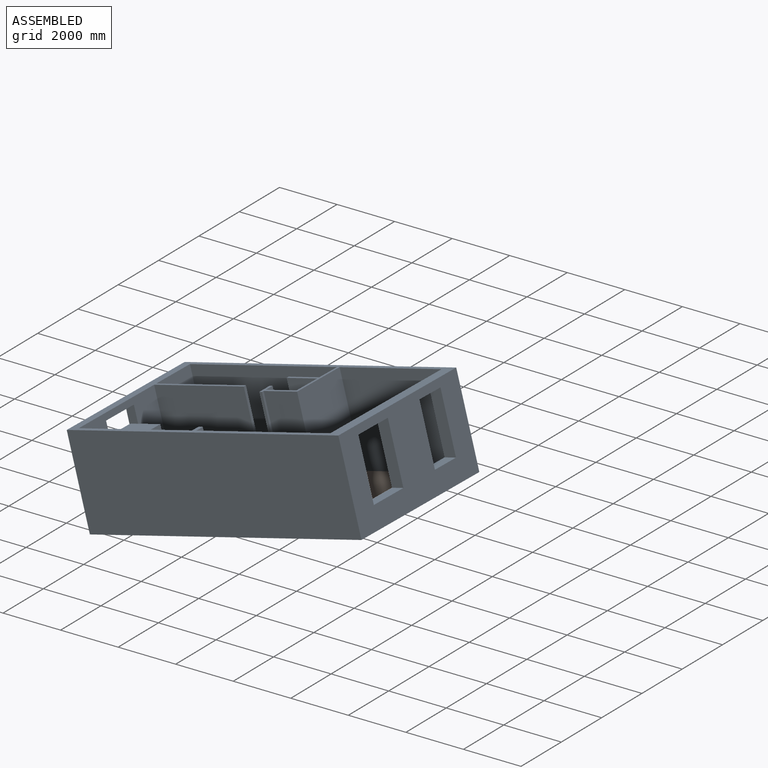
[diagram: assembled view]
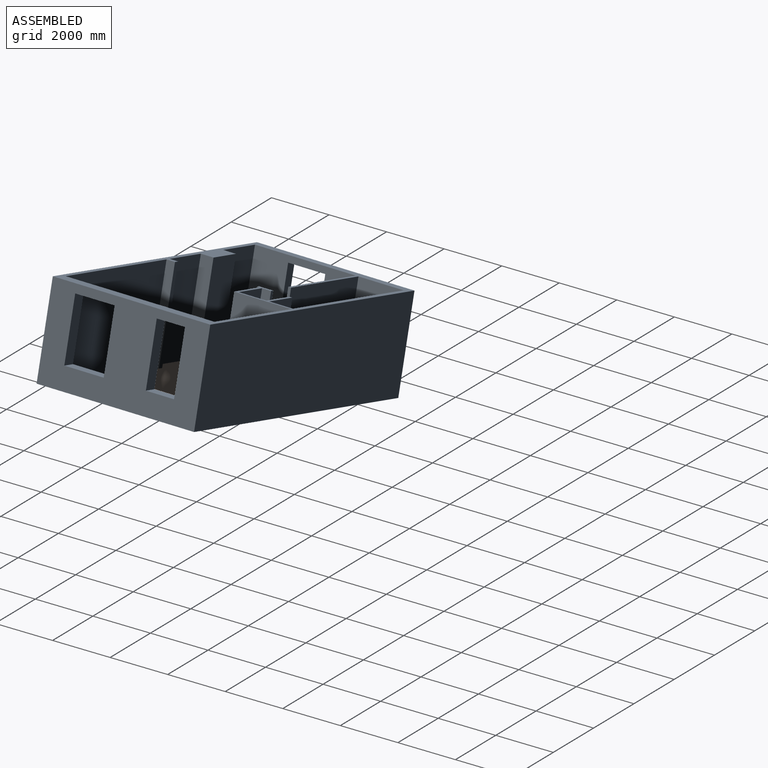
[diagram: assembled view, second angle]
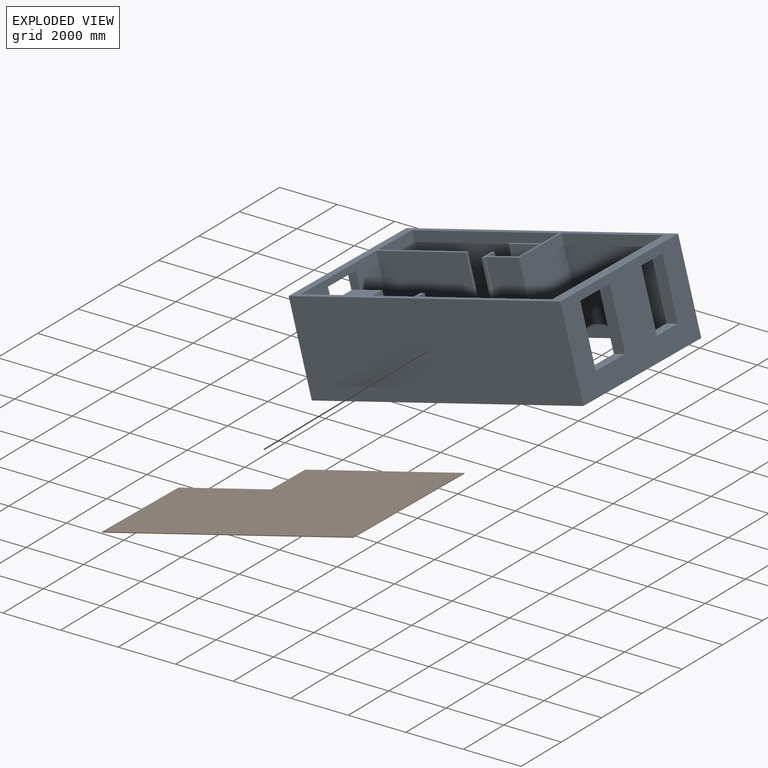
[diagram: exploded view]
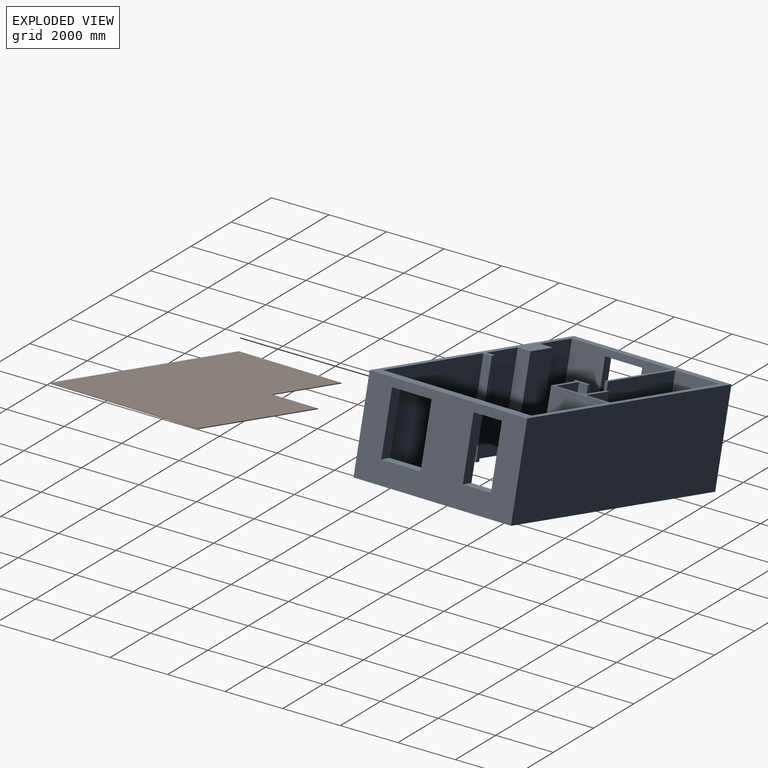
[diagram: exploded view, second angle]
ASSEMBLY  parts=2 mates=3
PART A: 53 faces, bbox 5600x10000x3170 mm
  f0: plane 10000x5600mm, normal (0,0,-1), area 6787200mm2, adj f1,f26,f27,f28,f29,f30,f31,f32
  f1: plane 5280x3170mm, normal (0,-1,0), area 10978700mm2, adj f0,f2,f4,f29,f31,f33,f37,f46
  f2: plane 3300x3145mm, normal (-1,0,0), area 10378500mm2, adj f1,f3,f33,f37
  f3: plane 3145x100mm, normal (0,-1,0), area 314500mm2, adj f2,f4,f33,f37
  f4: plane 3300x3145mm, normal (1,0,0), area 10378500mm2, adj f1,f3,f33,f37
  f5: plane 3145x840mm, normal (0,1,0), area 2641800mm2, adj f6,f29,f33,f36
  f6: plane 3145x1125mm, normal (1,0,0), area 3538125mm2, adj f5,f7,f33,f36
  f7: plane 3145x100mm, normal (0,1,0), area 314500mm2, adj f6,f8,f33,f36
  f8: plane 3145x1125mm, normal (-1,0,0), area 3538125mm2, adj f7,f9,f33,f36
  f9: plane 3145x980mm, normal (0,1,0), area 3082100mm2, adj f8,f10,f33,f36
  f10: plane 3145x1130mm, normal (1,0,0), area 3553850mm2, adj f9,f11,f33,f36
  f11: plane 3145x320mm, normal (0,-1,0), area 1006400mm2, adj f10,f12,f33,f36
  f12: plane 3145x110mm, normal (1,0,0), area 345950mm2, adj f11,f13,f33,f36
  f13: plane 3145x100mm, normal (0,1,0), area 314500mm2, adj f12,f14,f33,f36
  f14: plane 3145x10mm, normal (-1,0,0), area 31450mm2, adj f13,f15,f33,f36
  f15: plane 3145x400mm, normal (0,1,0), area 1258000mm2, adj f14,f16,f33,f36
  f16: plane 3145x100mm, normal (-1,0,0), area 314500mm2, adj f15,f17,f33,f36
  f17: plane 3145x80mm, normal (0,-1,0), area 251600mm2, adj f16,f18,f33,f36
  f18: plane 3145x1230mm, normal (-1,0,0), area 3868350mm2, adj f17,f19,f33,f36
  f19: plane 3145x2020mm, normal (0,-1,0), area 6352900mm2, adj f18,f29,f33,f36
  f20: plane 3145x300mm, normal (0,-1,0), area 943500mm2, adj f21,f31,f33,f35
  f21: plane 3145x160mm, normal (1,0,0), area 503200mm2, adj f20,f22,f33,f35
  f22: plane 3145x300mm, normal (0,1,0), area 943500mm2, adj f21,f31,f33,f35
  f23: plane 3145x450mm, normal (0,-1,0), area 1415250mm2, adj f24,f31,f33,f34
  f24: plane 3145x1100mm, normal (1,0,0), area 3459500mm2, adj f23,f25,f33,f34
  f25: plane 3145x450mm, normal (0,1,0), area 1415250mm2, adj f24,f31,f33,f34
  f26: plane 5600x3170mm, normal (0,1,0), area 12307600mm2, adj f0,f27,f32,f33,f46,f47,f48,f49
  f27: plane 10000x3170mm, normal (-1,0,0), area 31700000mm2, adj f0,f26,f28,f33
  f28: plane 5600x3170mm, normal (0,-1,0), area 12640000mm2, adj f0,f27,f32,f33,f38,f39,f40,f41
  f29: plane 9260x3170mm, normal (-1,0,0), area 29039700mm2, adj f0,f1,f5,f19,f30,f33,f36
  f30: plane 5280x3170mm, normal (0,1,0), area 11625600mm2, adj f0,f29,f31,f33,f38,f39,f40,f41
  f31: plane 9260x3170mm, normal (1,0,0), area 25391500mm2, adj f0,f1,f20,f22,f23,f25,f30,f33
  f32: plane 10000x3170mm, normal (1,0,0), area 31700000mm2, adj f0,f26,f28,f33
  f33: plane 10000x5600mm, normal (0,0,1), area 8458700mm2, adj f1,f2,f3,f4,f5,f6,f7,f8
  f34: plane 1100x450mm, normal (0,0,-1), area 495000mm2, adj f23,f24,f25,f31
  f35: plane 300x160mm, normal (0,0,-1), area 48000mm2, adj f20,f21,f22,f31
  f36: plane 2100x1340mm, normal (0,0,-1), area 478500mm2, adj f5,f6,f7,f8,f9,f10,f11,f12
  f37: plane 3300x100mm, normal (0,0,-1), area 330000mm2, adj f1,f2,f3,f4
  f38: plane 1000x420mm, normal (0,0,1), area 420000mm2, adj f28,f30,f39,f40
  f39: plane 2130x420mm, normal (1,0,0), area 894600mm2, adj f28,f30,f38,f41
  f40: plane 2130x420mm, normal (-1,0,0), area 894600mm2, adj f28,f30,f38,f41
  f41: plane 1000x420mm, normal (0,0,-1), area 420000mm2, adj f28,f30,f39,f40
  f42: plane 2130x420mm, normal (1,0,0), area 894600mm2, adj f28,f30,f43,f44
  f43: plane 1400x420mm, normal (0,0,-1), area 588000mm2, adj f28,f30,f42,f45
  f44: plane 1400x420mm, normal (0,0,1), area 588000mm2, adj f28,f30,f42,f45
  f45: plane 2130x420mm, normal (-1,0,0), area 894600mm2, adj f28,f30,f43,f44
  f46: plane 1590x320mm, normal (1,0,0), area 508800mm2, adj f0,f1,f26,f47
  f47: plane 1000x320mm, normal (0,0,-1), area 320000mm2, adj f1,f26,f46,f48
  f48: plane 1590x320mm, normal (-1,0,0), area 508800mm2, adj f0,f1,f26,f47
  f49: plane 2920x320mm, normal (1,0,0), area 934400mm2, adj f1,f26,f50,f51
  f50: plane 1320x320mm, normal (0,0,1), area 422400mm2, adj f1,f26,f49,f52
  f51: plane 1320x320mm, normal (0,0,-1), area 422400mm2, adj f1,f26,f49,f52
  f52: plane 2920x320mm, normal (-1,0,0), area 934400mm2, adj f1,f26,f50,f51
PART B: 8 faces, bbox 5280x9260x25 mm
  f0: plane 3650x25mm, normal (0,1,0), area 91250mm2, adj f1,f5,f6,f7
  f1: plane 9260x25mm, normal (-1,0,0), area 231500mm2, adj f0,f2,f6,f7
  f2: plane 5280x25mm, normal (0,-1,0), area 132000mm2, adj f1,f3,f6,f7
  f3: plane 5860x25mm, normal (1,0,0), area 146500mm2, adj f2,f4,f6,f7
  f4: plane 1630x25mm, normal (0,1,0), area 40750mm2, adj f3,f5,f6,f7
  f5: plane 3400x25mm, normal (1,0,0), area 85000mm2, adj f0,f4,f6,f7
  f6: plane 9260x5280mm, normal (0,0,1), area 43350800mm2, adj f0,f1,f2,f3,f4,f5
  f7: plane 9260x5280mm, normal (0,0,-1), area 43350800mm2, adj f0,f1,f2,f3,f4,f5
PLACE A rot(axis=(-0.13,-0.13,0.98),89.1deg) t=(-2622.29,3220.64,1991.2)mm
PLACE B rot(axis=(-0.13,-0.13,0.98),89.1deg) t=(-6152.87,7198.78,1064.45)mm
MATE planar B.f3 <-> A.f29  axis (0.03,1,0.01) through (-4167.02,6621.91,1598.25)mm
MATE planar B.f7 <-> A.f0  axis (0.25,0,-0.97) through (-5536.28,3793.47,1226.94)mm
MATE planar B.f2 <-> A.f30  axis (0.97,-0.03,0.25) through (-1418.02,3887.51,2319.76)mm
